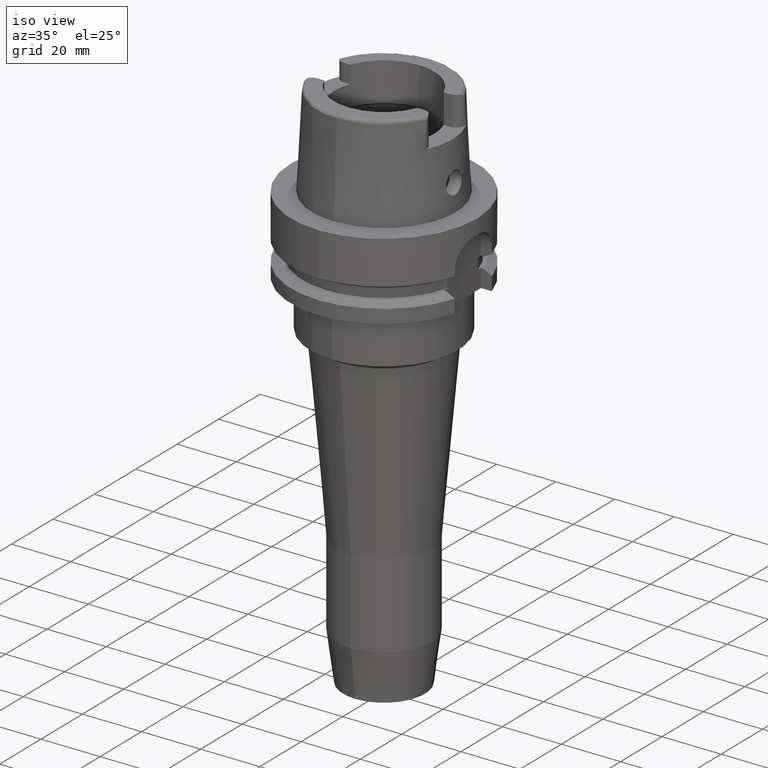
[diagram: clean part render]
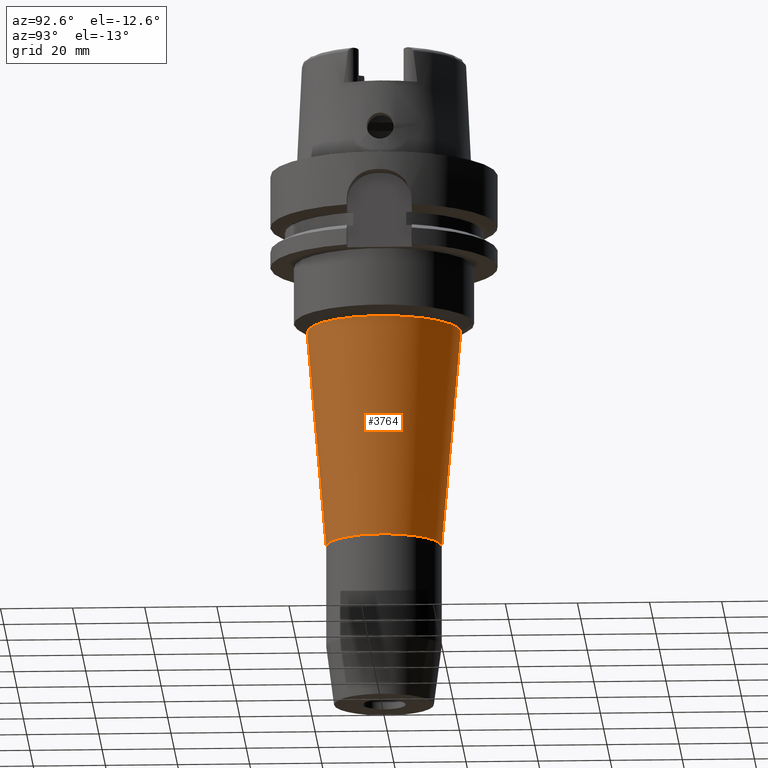
[diagram: tour spotlight — one face highlighted and labeled with its STEP entity id]
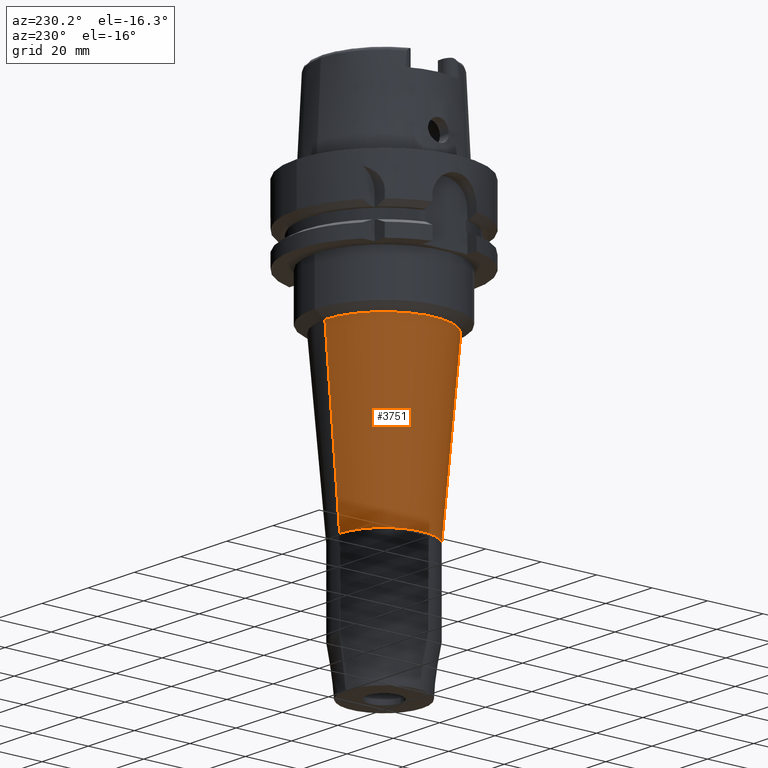
[diagram: tour spotlight — one face highlighted and labeled with its STEP entity id]
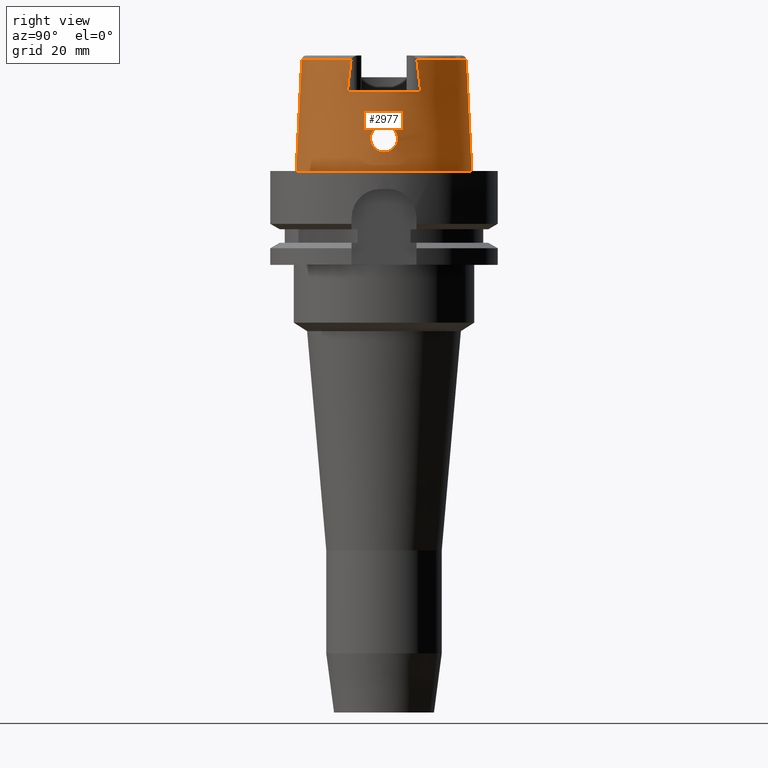
[diagram: tour spotlight — one face highlighted and labeled with its STEP entity id]
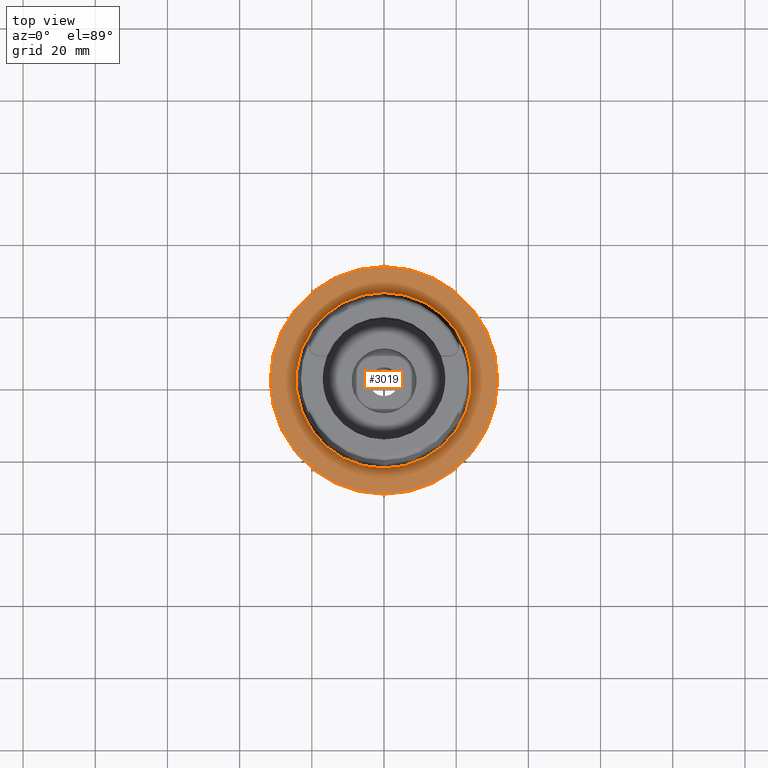
[diagram: tour spotlight — one face highlighted and labeled with its STEP entity id]
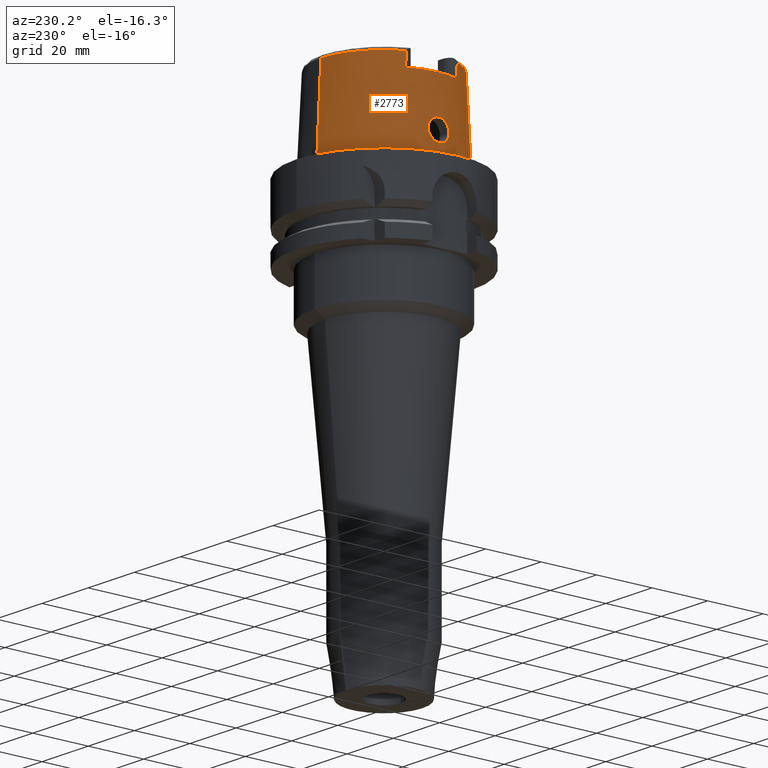
[diagram: tour spotlight — one face highlighted and labeled with its STEP entity id]
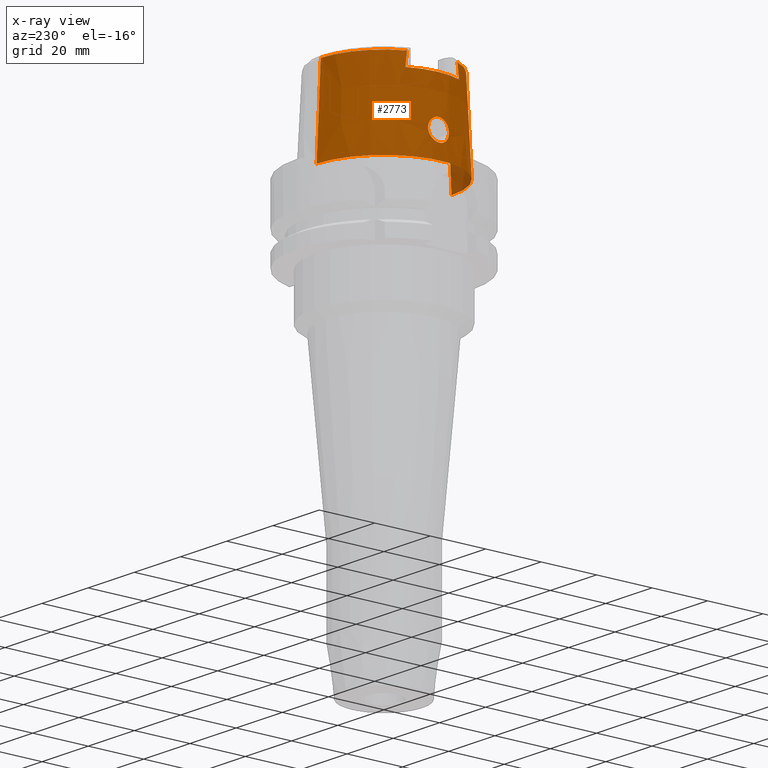
[diagram: x-ray of the same camera — body ghosted, this tour face saturated]
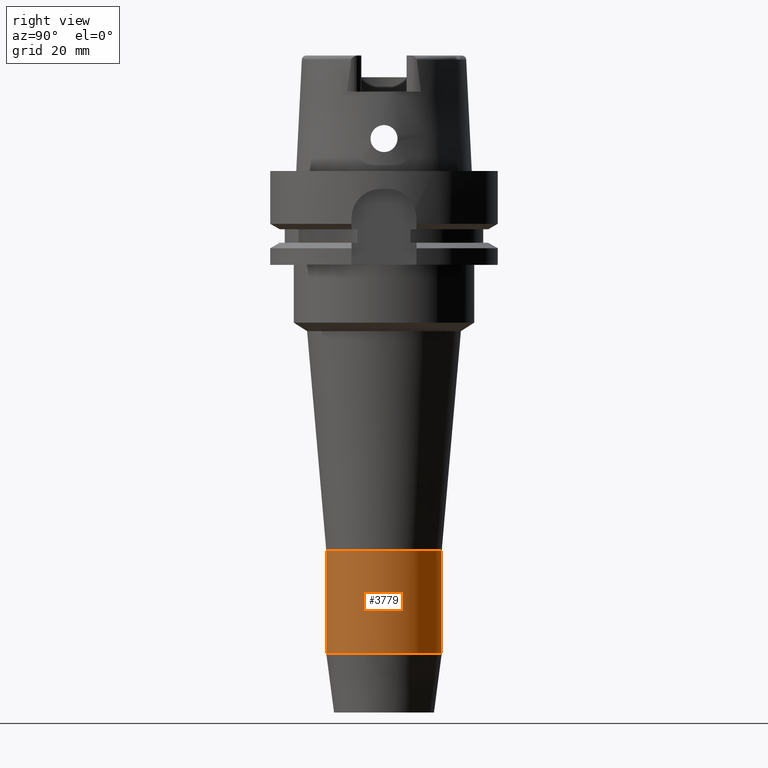
[diagram: tour spotlight — one face highlighted and labeled with its STEP entity id]
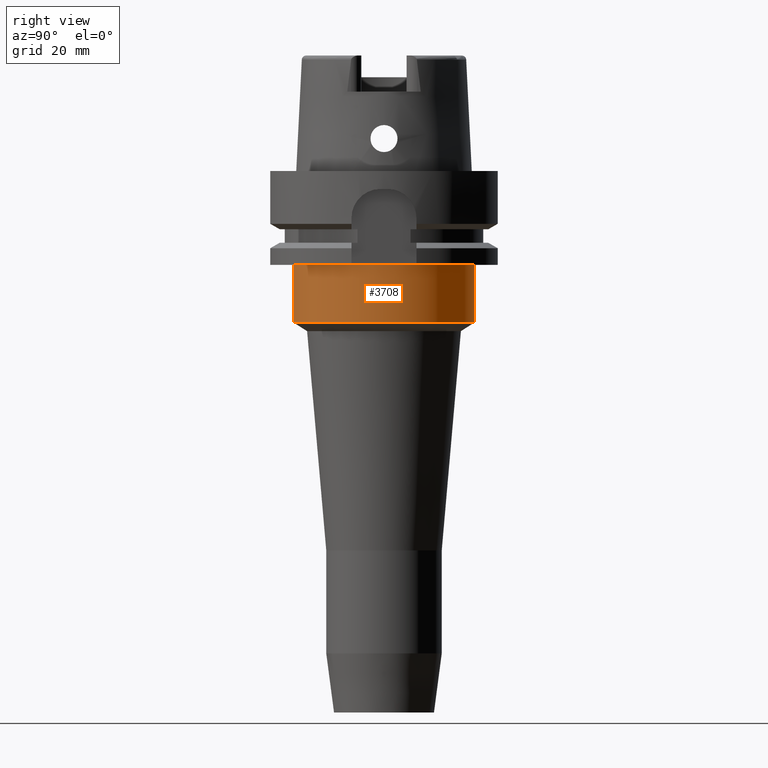
[diagram: tour spotlight — one face highlighted and labeled with its STEP entity id]
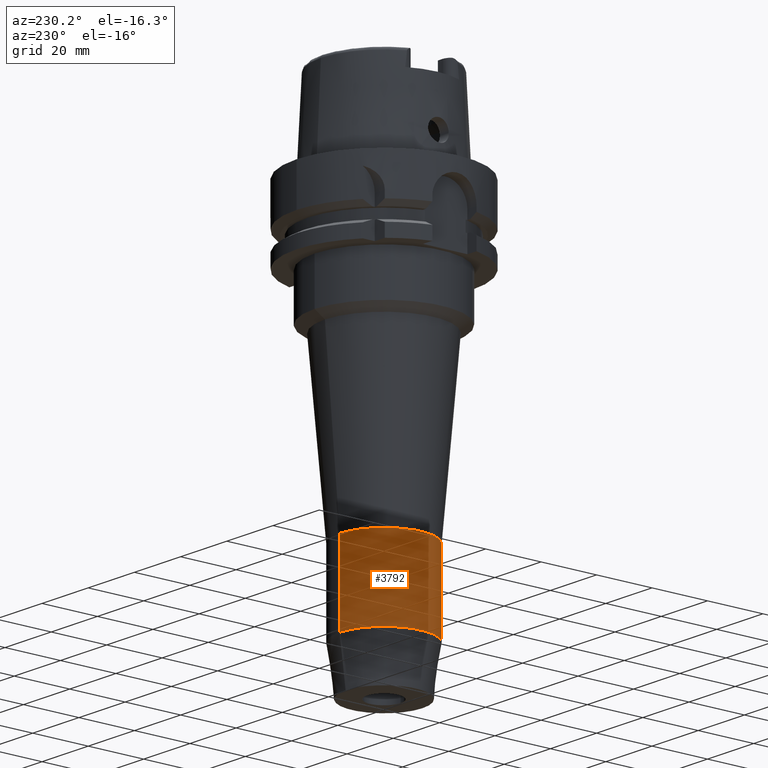
[diagram: tour spotlight — one face highlighted and labeled with its STEP entity id]
A machine part: a face-by-face anatomy tour. The part has 100 B-rep faces; the first image is the clean iso view, then the 8 largest visible faces are spotlighted one at a time (largest first), each with its STEP entity span.

Face 1 — auxiliary view, entity #3764. In plain terms, the highlighted conical surface has half-angle 4.993 deg.
Definition (entity closure, byte-faithful):
#1661=DIRECTION('',(0.E0,8.703403395518E-2,-9.962053387397E-1));
#1662=VECTOR('',#1661,6.096627674617E1);
#1663=CARTESIAN_POINT('',(0.E0,-2.130614100044E1,-4.435206962239E1));
#1664=LINE('',#1663,#1662);
#1676=DIRECTION('',(0.E0,-8.703403395518E-2,-9.962053387397E-1));
#1677=VECTOR('',#1676,6.096627674617E1);
#1678=CARTESIAN_POINT('',(0.E0,2.130614100044E1,-4.435206962239E1));
#1679=LINE('',#1678,#1677);
#1683=CARTESIAN_POINT('',(0.E0,0.E0,-1.05087E2));
#1684=DIRECTION('',(0.E0,0.E0,-1.E0));
#1685=DIRECTION('',(0.E0,1.E0,0.E0));
#1686=AXIS2_PLACEMENT_3D('',#1683,#1684,#1685);
#1691=CARTESIAN_POINT('',(0.E0,0.E0,-4.435206962239E1));
#1692=DIRECTION('',(0.E0,0.E0,1.E0));
#1693=DIRECTION('',(0.E0,-1.E0,0.E0));
#1694=AXIS2_PLACEMENT_3D('',#1691,#1692,#1693);
#2468=CARTESIAN_POINT('',(0.E0,1.6E1,-1.05087E2));
#2469=VERTEX_POINT('',#2468);
#2470=CARTESIAN_POINT('',(0.E0,-1.6E1,-1.05087E2));
#2471=VERTEX_POINT('',#2470);
#2472=CARTESIAN_POINT('',(0.E0,2.130614100044E1,-4.435206962239E1));
#2473=VERTEX_POINT('',#2472);
#2474=CARTESIAN_POINT('',(0.E0,-2.130614100044E1,-4.435206962239E1));
#2475=VERTEX_POINT('',#2474);
#3752=CARTESIAN_POINT('',(0.E0,0.E0,-7.471953481119E1));
#3753=DIRECTION('',(0.E0,0.E0,1.E0));
#3754=DIRECTION('',(0.E0,1.E0,0.E0));
#3755=AXIS2_PLACEMENT_3D('',#3752,#3753,#3754);
#3756=CONICAL_SURFACE('',#3755,1.865307050022E1,4.993E0);
#3757=ORIENTED_EDGE('',*,*,#3742,.T.);
#3759=ORIENTED_EDGE('',*,*,#3758,.T.);
#3760=ORIENTED_EDGE('',*,*,#3745,.F.);
#3761=ORIENTED_EDGE('',*,*,#3716,.T.);
#3762=EDGE_LOOP('',(#3757,#3759,#3760,#3761));
#3763=FACE_OUTER_BOUND('',#3762,.F.);
#1687=CIRCLE('',#1686,1.6E1);
#1695=CIRCLE('',#1694,2.130614100044E1);
#3716=EDGE_CURVE('',#2475,#2473,#1695,.T.);
#3742=EDGE_CURVE('',#2473,#2469,#1679,.T.);
#3745=EDGE_CURVE('',#2475,#2471,#1664,.T.);
#3758=EDGE_CURVE('',#2469,#2471,#1687,.T.);
#3764=ADVANCED_FACE('',(#3763),#3756,.T.);

Face 2 — auxiliary view, entity #3751. In plain terms, the highlighted conical surface has half-angle 4.993 deg.
Definition (entity closure, byte-faithful):
#1653=CARTESIAN_POINT('',(0.E0,0.E0,-4.435206962238E1));
#1654=DIRECTION('',(0.E0,0.E0,-1.E0));
#1655=DIRECTION('',(0.E0,-1.E0,0.E0));
#1656=AXIS2_PLACEMENT_3D('',#1653,#1654,#1655);
#1661=DIRECTION('',(0.E0,8.703403395518E-2,-9.962053387397E-1));
#1662=VECTOR('',#1661,6.096627674617E1);
#1663=CARTESIAN_POINT('',(0.E0,-2.130614100044E1,-4.435206962239E1));
#1664=LINE('',#1663,#1662);
#1668=CARTESIAN_POINT('',(0.E0,0.E0,-1.05087E2));
#1669=DIRECTION('',(0.E0,0.E0,-1.E0));
#1670=DIRECTION('',(0.E0,-1.E0,0.E0));
#1671=AXIS2_PLACEMENT_3D('',#1668,#1669,#1670);
#1676=DIRECTION('',(0.E0,-8.703403395518E-2,-9.962053387397E-1));
#1677=VECTOR('',#1676,6.096627674617E1);
#1678=CARTESIAN_POINT('',(0.E0,2.130614100044E1,-4.435206962239E1));
#1679=LINE('',#1678,#1677);
#2468=CARTESIAN_POINT('',(0.E0,1.6E1,-1.05087E2));
#2469=VERTEX_POINT('',#2468);
#2470=CARTESIAN_POINT('',(0.E0,-1.6E1,-1.05087E2));
#2471=VERTEX_POINT('',#2470);
#2472=CARTESIAN_POINT('',(0.E0,2.130614100044E1,-4.435206962239E1));
#2473=VERTEX_POINT('',#2472);
#2474=CARTESIAN_POINT('',(0.E0,-2.130614100044E1,-4.435206962239E1));
#2475=VERTEX_POINT('',#2474);
#3737=CARTESIAN_POINT('',(0.E0,0.E0,-7.471953481119E1));
#3738=DIRECTION('',(0.E0,0.E0,1.E0));
#3739=DIRECTION('',(0.E0,1.E0,0.E0));
#3740=AXIS2_PLACEMENT_3D('',#3737,#3738,#3739);
#3741=CONICAL_SURFACE('',#3740,1.865307050022E1,4.993E0);
#3743=ORIENTED_EDGE('',*,*,#3742,.F.);
#3744=ORIENTED_EDGE('',*,*,#3732,.F.);
#3746=ORIENTED_EDGE('',*,*,#3745,.T.);
#3748=ORIENTED_EDGE('',*,*,#3747,.T.);
#3749=EDGE_LOOP('',(#3743,#3744,#3746,#3748));
#3750=FACE_OUTER_BOUND('',#3749,.F.);
#1657=CIRCLE('',#1656,2.130614100045E1);
#1672=CIRCLE('',#1671,1.6E1);
#3732=EDGE_CURVE('',#2475,#2473,#1657,.T.);
#3742=EDGE_CURVE('',#2473,#2469,#1679,.T.);
#3745=EDGE_CURVE('',#2475,#2471,#1664,.T.);
#3747=EDGE_CURVE('',#2471,#2469,#1672,.T.);
#3751=ADVANCED_FACE('',(#3750),#3741,.T.);

Face 3 — right view, entity #2977. In plain terms, the highlighted conical surface has half-angle 2.862 deg.
Definition (entity closure, byte-faithful):
#180=DIRECTION('',(8.032179027582E-5,-4.993928193351E-2,-9.987522523971E-1));
#181=VECTOR('',#180,3.089848062794E1);
#182=CARTESIAN_POINT('',(-2.481821280836E-3,-2.277198688789E1,
3.085992712280E1));
#183=LINE('',#182,#181);
#274=CARTESIAN_POINT('',(2.086974110890E1,-9.111383545307E0,3.085992739891E1));
#279=CARTESIAN_POINT('',(0.E0,0.E0,3.085992712280E1));
#280=DIRECTION('',(0.E0,0.E0,-1.E0));
#281=DIRECTION('',(9.164655183266E-1,-4.001136759952E-1,0.E0));
#282=AXIS2_PLACEMENT_3D('',#279,#280,#281);
#367=CARTESIAN_POINT('',(0.E0,0.E0,2.2E1));
#368=DIRECTION('',(0.E0,0.E0,-1.E0));
#369=DIRECTION('',(8.989877876695E-1,4.379736951247E-1,0.E0));
#370=AXIS2_PLACEMENT_3D('',#367,#368,#369);
#491=CARTESIAN_POINT('',(0.E0,0.E0,3.085992712280E1));
#492=DIRECTION('',(0.E0,0.E0,-1.E0));
#493=DIRECTION('',(0.E0,1.E0,0.E0));
#494=AXIS2_PLACEMENT_3D('',#491,#492,#493);
#517=CARTESIAN_POINT('',(2.086999606046E1,1.016757672266E1,2.2E1));
#518=CARTESIAN_POINT('',(2.086999606046E1,1.005830459063E1,2.295713692901E1));
#519=CARTESIAN_POINT('',(2.087000073896E1,9.837693730875E0,2.486635586685E1));
#520=CARTESIAN_POINT('',(2.087000332293E1,9.498302441153E0,2.771500404677E1));
#521=CARTESIAN_POINT('',(2.086999175384E1,9.267368850587E0,2.960362234706E1));
#522=CARTESIAN_POINT('',(2.086999175384E1,9.150018522195E0,3.054599590696E1));
#527=CARTESIAN_POINT('',(2.086999175384E1,9.150018522195E0,3.054599590696E1));
#528=CARTESIAN_POINT('',(2.086999175384E1,9.145671884266E0,3.058090127719E1));
#529=CARTESIAN_POINT('',(2.086998416655E1,9.136990373425E0,3.065018241705E1));
#530=CARTESIAN_POINT('',(2.086989220690E1,9.124128538912E0,3.075517018278E1));
#531=CARTESIAN_POINT('',(2.086979784207E1,9.115619992634E0,3.082498881153E1));
#532=CARTESIAN_POINT('',(2.086974104059E1,9.111384043401E0,3.085992601097E1));
#537=DIRECTION('',(-8.032179027593E-5,4.993928193351E-2,-9.987522523971E-1));
#538=VECTOR('',#537,3.089848062794E1);
#539=CARTESIAN_POINT('',(2.481821280840E-3,2.277198688789E1,3.085992712280E1));
#540=LINE('',#539,#538);
#544=CARTESIAN_POINT('',(2.086974110890E1,-9.111383545307E0,3.085992739891E1));
#545=CARTESIAN_POINT('',(2.086979791523E1,-9.115619747534E0,3.082498808786E1));
#546=CARTESIAN_POINT('',(2.086989359503E1,-9.124126100557E0,3.075510751685E1));
#547=CARTESIAN_POINT('',(2.086997922485E1,-9.137002228651E0,3.065040319054E1));
#548=CARTESIAN_POINT('',(2.087000236792E1,-9.145647815676E0,3.058042815478E1));
#549=CARTESIAN_POINT('',(2.087000236792E1,-9.149994681381E0,3.054552122895E1));
#554=CARTESIAN_POINT('',(2.087000236792E1,-9.149994681381E0,3.054552122895E1));
#555=CARTESIAN_POINT('',(2.087000236792E1,-9.267237586258E0,2.960401770380E1));
#556=CARTESIAN_POINT('',(2.087000130158E1,-9.498473773453E0,2.771533041693E1));
#557=CARTESIAN_POINT('',(2.086999189259E1,-9.837864426117E0,2.486682029449E1));
#558=CARTESIAN_POINT('',(2.087001804958E1,-1.005818307170E1,2.295730285027E1));
#559=CARTESIAN_POINT('',(2.087001804958E1,-1.016747560172E1,2.2E1));
#564=CARTESIAN_POINT('',(2.367751368058E1,0.E0,1.275E1));
#565=CARTESIAN_POINT('',(2.367751368058E1,-3.573750892276E-1,1.275E1));
#566=CARTESIAN_POINT('',(2.366602661328E1,-1.072480470838E0,1.264701812658E1));
#567=CARTESIAN_POINT('',(2.362156617659E1,-2.058400404760E0,1.219633609900E1));
#568=CARTESIAN_POINT('',(2.356917741263E1,-2.879133370746E0,1.148246034677E1));
#569=CARTESIAN_POINT('',(2.353465313627E1,-3.460299468910E0,1.057248995301E1));
#570=CARTESIAN_POINT('',(2.353933107364E1,-3.762049578497E0,9.540048673058E0));
#571=CARTESIAN_POINT('',(2.359357380852E1,-3.762854586792E0,8.466825258654E0));
#572=CARTESIAN_POINT('',(2.369280279451E1,-3.463794247878E0,7.434551172416E0));
#573=CARTESIAN_POINT('',(2.381915270499E1,-2.880545210358E0,6.518206087924E0));
#574=CARTESIAN_POINT('',(2.394281602525E1,-2.055622413007E0,5.801336085520E0));
#575=CARTESIAN_POINT('',(2.403140486443E1,-1.065773042871E0,5.351066768983E0));
#576=CARTESIAN_POINT('',(2.405252611747E1,-3.543520545894E-1,5.25E0));
#577=CARTESIAN_POINT('',(2.405252611747E1,0.E0,5.25E0));
#582=CARTESIAN_POINT('',(2.405252611747E1,0.E0,5.25E0));
#583=CARTESIAN_POINT('',(2.405252611747E1,3.539388083922E-1,5.25E0));
#584=CARTESIAN_POINT('',(2.403138314055E1,1.062742172268E0,5.351240040662E0));
#585=CARTESIAN_POINT('',(2.394445349424E1,2.040088640092E0,5.792918795612E0));
#586=CARTESIAN_POINT('',(2.382211050449E1,2.864325034476E0,6.499618269899E0));
#587=CARTESIAN_POINT('',(2.369483932988E1,3.456604325712E0,7.416308849852E0));
#588=CARTESIAN_POINT('',(2.359383882169E1,3.763238276441E0,8.460463559970E0));
#589=CARTESIAN_POINT('',(2.353912852789E1,3.762052968905E0,9.544123637686E0));
#590=CARTESIAN_POINT('',(2.353478993067E1,3.457796473264E0,1.057717548023E1));
#591=CARTESIAN_POINT('',(2.356916741657E1,2.879303421212E0,1.148125246033E1));
#592=CARTESIAN_POINT('',(2.362130496122E1,2.062872337162E0,1.219341130049E1));
#593=CARTESIAN_POINT('',(2.366596789500E1,1.075165795176E0,1.264654607911E1));
#594=CARTESIAN_POINT('',(2.367751368058E1,3.584897738616E-1,1.275E1));
#595=CARTESIAN_POINT('',(2.367751368058E1,0.E0,1.275E1));
#630=CARTESIAN_POINT('',(0.E0,0.E0,-7.389644451905E-13));
#631=DIRECTION('',(0.E0,0.E0,1.E0));
#632=DIRECTION('',(0.E0,-1.E0,0.E0));
#633=AXIS2_PLACEMENT_3D('',#630,#631,#632);
#2357=CARTESIAN_POINT('',(0.E0,-2.277198729362E1,3.085992712280E1));
#2358=VERTEX_POINT('',#2357);
#2359=CARTESIAN_POINT('',(0.E0,-2.431503482329E1,-3.410605131648E-13));
#2360=VERTEX_POINT('',#2359);
#2361=CARTESIAN_POINT('',(0.E0,2.431503482329E1,-7.389644451905E-13));
#2362=VERTEX_POINT('',#2361);
#2363=CARTESIAN_POINT('',(2.481821280840E-3,2.277198688789E1,3.085992712280E1));
#2364=VERTEX_POINT('',#2363);
#2367=CARTESIAN_POINT('',(2.086974092012E1,9.111384045666E0,3.085992712280E1));
#2368=VERTEX_POINT('',#2367);
#2369=VERTEX_POINT('',#274);
#2370=CARTESIAN_POINT('',(2.087E1,1.016755860605E1,2.2E1));
#2371=CARTESIAN_POINT('',(2.087E1,-1.016755860605E1,2.2E1));
#2372=VERTEX_POINT('',#2370);
#2373=VERTEX_POINT('',#2371);
#2374=VERTEX_POINT('',#522);
#2375=VERTEX_POINT('',#549);
#2376=VERTEX_POINT('',#564);
#2377=VERTEX_POINT('',#577);
#2950=CARTESIAN_POINT('',(0.E0,0.E0,1.542996356140E1));
#2951=DIRECTION('',(0.E0,0.E0,-1.E0));
#2952=DIRECTION('',(0.E0,-1.E0,0.E0));
#2953=AXIS2_PLACEMENT_3D('',#2950,#2951,#2952);
#2954=CONICAL_SURFACE('',#2953,2.354351105845E1,2.8625E0);
#2955=ORIENTED_EDGE('',*,*,#2864,.F.);
#2957=ORIENTED_EDGE('',*,*,#2956,.T.);
#2959=ORIENTED_EDGE('',*,*,#2958,.T.);
#2960=ORIENTED_EDGE('',*,*,#2942,.F.);
#2961=ORIENTED_EDGE('',*,*,#2757,.T.);
#2963=ORIENTED_EDGE('',*,*,#2962,.F.);
#2964=ORIENTED_EDGE('',*,*,#2753,.F.);
#2965=ORIENTED_EDGE('',*,*,#2794,.F.);
#2966=ORIENTED_EDGE('',*,*,#2812,.T.);
#2968=ORIENTED_EDGE('',*,*,#2967,.T.);
#2969=EDGE_LOOP('',(#2955,#2957,#2959,#2960,#2961,#2963,#2964,#2965,#2966,
#2968));
#2970=FACE_OUTER_BOUND('',#2969,.F.);
#2972=ORIENTED_EDGE('',*,*,#2971,.T.);
#2974=ORIENTED_EDGE('',*,*,#2973,.T.);
#2975=EDGE_LOOP('',(#2972,#2974));
#2976=FACE_BOUND('',#2975,.F.);
#283=CIRCLE('',#282,2.277198729362E1);
#371=CIRCLE('',#370,2.321499834175E1);
#495=CIRCLE('',#494,2.277198729362E1);
#523=B_SPLINE_CURVE_WITH_KNOTS('',3,(#517,#518,#519,#520,#521,#522),
.UNSPECIFIED.,.F.,.F.,(4,1,1,4),(0.E0,3.333333333333E-1,6.666666666667E-1,1.E0),
.UNSPECIFIED.);
#533=B_SPLINE_CURVE_WITH_KNOTS('',3,(#527,#528,#529,#530,#531,#532),
.UNSPECIFIED.,.F.,.F.,(4,1,1,4),(0.E0,3.333333333333E-1,6.666666666667E-1,1.E0),
.UNSPECIFIED.);
#550=B_SPLINE_CURVE_WITH_KNOTS('',3,(#544,#545,#546,#547,#548,#549),
.UNSPECIFIED.,.F.,.F.,(4,1,1,4),(0.E0,3.333333333333E-1,6.666666666667E-1,1.E0),
.UNSPECIFIED.);
#560=B_SPLINE_CURVE_WITH_KNOTS('',3,(#554,#555,#556,#557,#558,#559),
.UNSPECIFIED.,.F.,.F.,(4,1,1,4),(0.E0,3.333333333333E-1,6.666666666667E-1,1.E0),
.UNSPECIFIED.);
#578=B_SPLINE_CURVE_WITH_KNOTS('',3,(#564,#565,#566,#567,#568,#569,#570,#571,
#572,#573,#574,#575,#576,#577),.UNSPECIFIED.,.F.,.F.,(4,1,1,1,1,1,1,1,1,1,1,4),(
0.E0,9.090909090909E-2,1.818181818182E-1,2.727272727273E-1,3.636363636364E-1,
4.545454545455E-1,5.454545454545E-1,6.363636363636E-1,7.272727272727E-1,
8.181818181818E-1,9.090909090909E-1,1.E0),.UNSPECIFIED.);
#596=B_SPLINE_CURVE_WITH_KNOTS('',3,(#582,#583,#584,#585,#586,#587,#588,#589,
#590,#591,#592,#593,#594,#595),.UNSPECIFIED.,.F.,.F.,(4,1,1,1,1,1,1,1,1,1,1,4),(
0.E0,9.090909090909E-2,1.818181818182E-1,2.727272727273E-1,3.636363636364E-1,
4.545454545455E-1,5.454545454545E-1,6.363636363636E-1,7.272727272727E-1,
8.181818181818E-1,9.090909090909E-1,1.E0),.UNSPECIFIED.);
#634=CIRCLE('',#633,2.431503482329E1);
#2753=EDGE_CURVE('',#2358,#2360,#183,.T.);
#2757=EDGE_CURVE('',#2364,#2362,#540,.T.);
#2794=EDGE_CURVE('',#2369,#2358,#283,.T.);
#2812=EDGE_CURVE('',#2369,#2375,#550,.T.);
#2864=EDGE_CURVE('',#2372,#2373,#371,.T.);
#2942=EDGE_CURVE('',#2364,#2368,#495,.T.);
#2956=EDGE_CURVE('',#2372,#2374,#523,.T.);
#2958=EDGE_CURVE('',#2374,#2368,#533,.T.);
#2962=EDGE_CURVE('',#2360,#2362,#634,.T.);
#2967=EDGE_CURVE('',#2375,#2373,#560,.T.);
#2971=EDGE_CURVE('',#2376,#2377,#578,.T.);
#2973=EDGE_CURVE('',#2377,#2376,#596,.T.);
#2977=ADVANCED_FACE('',(#2970,#2976),#2954,.T.);

Face 4 — top view, entity #3019. In plain terms, the highlighted planar face has unit normal (0, 0, 1).
Definition (entity closure, byte-faithful):
#614=CARTESIAN_POINT('',(0.E0,0.E0,3.410605131648E-13));
#615=DIRECTION('',(0.E0,0.E0,-1.E0));
#616=DIRECTION('',(0.E0,-1.E0,0.E0));
#617=AXIS2_PLACEMENT_3D('',#614,#615,#616);
#622=CARTESIAN_POINT('',(0.E0,0.E0,3.410605131648E-13));
#623=DIRECTION('',(0.E0,0.E0,-1.E0));
#624=DIRECTION('',(0.E0,1.E0,0.E0));
#625=AXIS2_PLACEMENT_3D('',#622,#623,#624);
#630=CARTESIAN_POINT('',(0.E0,0.E0,-7.389644451905E-13));
#631=DIRECTION('',(0.E0,0.E0,1.E0));
#632=DIRECTION('',(0.E0,-1.E0,0.E0));
#633=AXIS2_PLACEMENT_3D('',#630,#631,#632);
#638=CARTESIAN_POINT('',(0.E0,0.E0,-7.389644451905E-13));
#639=DIRECTION('',(0.E0,0.E0,1.E0));
#640=DIRECTION('',(0.E0,1.E0,0.E0));
#641=AXIS2_PLACEMENT_3D('',#638,#639,#640);
#2359=CARTESIAN_POINT('',(0.E0,-2.431503482329E1,-3.410605131648E-13));
#2360=VERTEX_POINT('',#2359);
#2361=CARTESIAN_POINT('',(0.E0,2.431503482329E1,-7.389644451905E-13));
#2362=VERTEX_POINT('',#2361);
#2633=CARTESIAN_POINT('',(0.E0,3.15E1,1.894780628694E-13));
#2634=VERTEX_POINT('',#2633);
#2635=CARTESIAN_POINT('',(0.E0,-3.15E1,3.410605131648E-13));
#2636=VERTEX_POINT('',#2635);
#3004=CARTESIAN_POINT('',(0.E0,0.E0,0.E0));
#3005=DIRECTION('',(0.E0,0.E0,1.E0));
#3006=DIRECTION('',(0.E0,1.E0,0.E0));
#3007=AXIS2_PLACEMENT_3D('',#3004,#3005,#3006);
#3008=PLANE('',#3007);
#3010=ORIENTED_EDGE('',*,*,#3009,.T.);
#3012=ORIENTED_EDGE('',*,*,#3011,.T.);
#3013=EDGE_LOOP('',(#3010,#3012));
#3014=FACE_OUTER_BOUND('',#3013,.F.);
#3015=ORIENTED_EDGE('',*,*,#2962,.T.);
#3016=ORIENTED_EDGE('',*,*,#2755,.T.);
#3017=EDGE_LOOP('',(#3015,#3016));
#3018=FACE_BOUND('',#3017,.F.);
#618=CIRCLE('',#617,3.15E1);
#626=CIRCLE('',#625,3.15E1);
#634=CIRCLE('',#633,2.431503482329E1);
#642=CIRCLE('',#641,2.431503482329E1);
#2755=EDGE_CURVE('',#2362,#2360,#642,.T.);
#2962=EDGE_CURVE('',#2360,#2362,#634,.T.);
#3009=EDGE_CURVE('',#2636,#2634,#618,.T.);
#3011=EDGE_CURVE('',#2634,#2636,#626,.T.);
#3019=ADVANCED_FACE('',(#3014,#3018),#3008,.T.);

Face 5 — auxiliary view, entity #2773. An x-ray twin of the same camera follows (body ghosted, this face saturated) — the face is partly hidden behind the body. In plain terms, the highlighted conical surface has half-angle 2.862 deg.
Definition (entity closure, byte-faithful):
#69=CARTESIAN_POINT('',(0.E0,0.E0,2.6E1));
#70=DIRECTION('',(0.E0,0.E0,-1.E0));
#71=DIRECTION('',(-9.068002397791E-1,-4.215605829967E-1,0.E0));
#72=AXIS2_PLACEMENT_3D('',#69,#70,#71);
#160=CARTESIAN_POINT('',(-2.086999931535E1,-9.702216590561E0,2.6E1));
#161=CARTESIAN_POINT('',(-2.086999931535E1,-9.642048820361E0,2.650727061302E1));
#162=CARTESIAN_POINT('',(-2.087000013188E1,-9.520999784311E0,2.752034962291E1));
#163=CARTESIAN_POINT('',(-2.087000056538E1,-9.336893546791E0,2.903557629453E1));
#164=CARTESIAN_POINT('',(-2.086999859286E1,-9.212633972085E0,3.004273962856E1));
#165=CARTESIAN_POINT('',(-2.086999859286E1,-9.150003160547E0,3.054568941686E1));
#170=CARTESIAN_POINT('',(-2.086999859286E1,-9.150003160547E0,3.054568941686E1));
#171=CARTESIAN_POINT('',(-2.086999859286E1,-9.145656550786E0,3.058059438465E1));
#172=CARTESIAN_POINT('',(-2.086998097501E1,-9.136997529037E0,3.065032563367E1));
#173=CARTESIAN_POINT('',(-2.086989311877E1,-9.124126494439E0,3.075512926385E1));
#174=CARTESIAN_POINT('',(-2.086979784207E1,-9.115619992630E0,3.082498881156E1));
#175=CARTESIAN_POINT('',(-2.086974104059E1,-9.111384043401E0,3.085992601097E1));
#180=DIRECTION('',(8.032179027582E-5,-4.993928193351E-2,-9.987522523971E-1));
#181=VECTOR('',#180,3.089848062794E1);
#182=CARTESIAN_POINT('',(-2.481821280836E-3,-2.277198688789E1,
3.085992712280E1));
#183=LINE('',#182,#181);
#187=CARTESIAN_POINT('',(-2.086974110890E1,9.111383545308E0,3.085992739891E1));
#188=CARTESIAN_POINT('',(-2.086979791523E1,9.115619747532E0,3.082498808788E1));
#189=CARTESIAN_POINT('',(-2.086989333338E1,9.124126689090E0,3.075511924067E1));
#190=CARTESIAN_POINT('',(-2.086998014064E1,9.137000168771E0,3.065036215730E1));
#191=CARTESIAN_POINT('',(-2.087000040551E1,9.145652229696E0,3.058051608324E1));
#192=CARTESIAN_POINT('',(-2.087000040551E1,9.149999089201E0,3.054560915662E1));
#197=CARTESIAN_POINT('',(-2.087000040551E1,9.149999089201E0,3.054560915662E1));
#198=CARTESIAN_POINT('',(-2.087000040551E1,9.212612082841E0,3.004280312583E1));
#199=CARTESIAN_POINT('',(-2.087000020370E1,9.336923098267E0,2.903562847786E1));
#200=CARTESIAN_POINT('',(-2.086999867880E1,9.521029051521E0,2.752042416367E1));
#201=CARTESIAN_POINT('',(-2.087000294700E1,9.642028220320E0,2.650729690943E1));
#202=CARTESIAN_POINT('',(-2.087000294700E1,9.702199254900E0,2.6E1));
#207=CARTESIAN_POINT('',(-2.405252611747E1,6.507195594501E-14,5.25E0));
#208=CARTESIAN_POINT('',(-2.405252611747E1,-3.539371138725E-1,5.25E0));
#209=CARTESIAN_POINT('',(-2.403138355696E1,-1.062739339113E0,5.351237667572E0));
#210=CARTESIAN_POINT('',(-2.394445199445E1,-2.040101645239E0,5.792927260805E0));
#211=CARTESIAN_POINT('',(-2.382210989187E1,-2.864329205136E0,6.499620767989E0));
#212=CARTESIAN_POINT('',(-2.369483467558E1,-3.456623539294E0,7.416346440128E0));
#213=CARTESIAN_POINT('',(-2.359383677536E1,-3.763241030920E0,8.460493495634E0));
#214=CARTESIAN_POINT('',(-2.353912722835E1,-3.762050460600E0,9.544159398722E0));
#215=CARTESIAN_POINT('',(-2.353479111729E1,-3.457772329575E0,1.057722020441E1));
#216=CARTESIAN_POINT('',(-2.356916712298E1,-2.879309625069E0,1.148124151293E1));
#217=CARTESIAN_POINT('',(-2.362130524511E1,-2.062866255238E0,1.219341663838E1));
#218=CARTESIAN_POINT('',(-2.366596758220E1,-1.075173607198E0,1.264654233397E1));
#219=CARTESIAN_POINT('',(-2.367751368058E1,-3.584931676637E-1,1.275E1));
#220=CARTESIAN_POINT('',(-2.367751368058E1,0.E0,1.275E1));
#225=CARTESIAN_POINT('',(-2.367751368058E1,0.E0,1.275E1));
#226=CARTESIAN_POINT('',(-2.367751368058E1,3.573698471562E-1,1.275E1));
#227=CARTESIAN_POINT('',(-2.366602710060E1,1.072470232321E0,1.264702361282E1));
#228=CARTESIAN_POINT('',(-2.362156522329E1,2.058419648222E0,1.219632408891E1));
#229=CARTESIAN_POINT('',(-2.356917684752E1,2.879139548555E0,1.148245592891E1));
#230=CARTESIAN_POINT('',(-2.353465226491E1,3.460321969280E0,1.057244261510E1));
#231=CARTESIAN_POINT('',(-2.353933189422E1,3.762049253971E0,9.540031611172E0));
#232=CARTESIAN_POINT('',(-2.359357530962E1,3.762853521961E0,8.466800667022E0));
#233=CARTESIAN_POINT('',(-2.369280644531E1,3.463778475162E0,7.434523008741E0));
#234=CARTESIAN_POINT('',(-2.381915118120E1,2.880552311287E0,6.518217263145E0));
#235=CARTESIAN_POINT('',(-2.394281608994E1,2.055623099746E0,5.801334996630E0));
#236=CARTESIAN_POINT('',(-2.403140465058E1,1.065775828138E0,5.351068072298E0));
#237=CARTESIAN_POINT('',(-2.405252611747E1,3.543530117688E-1,5.25E0));
#238=CARTESIAN_POINT('',(-2.405252611747E1,6.507195594501E-14,5.25E0));
#287=CARTESIAN_POINT('',(0.E0,0.E0,3.085992712280E1));
#288=DIRECTION('',(0.E0,0.E0,-1.E0));
#289=DIRECTION('',(0.E0,-1.E0,0.E0));
#290=AXIS2_PLACEMENT_3D('',#287,#288,#289);
#483=CARTESIAN_POINT('',(0.E0,0.E0,3.085992712280E1));
#484=DIRECTION('',(0.E0,0.E0,-1.E0));
#485=DIRECTION('',(-9.164655183266E-1,4.001136759952E-1,0.E0));
#486=AXIS2_PLACEMENT_3D('',#483,#484,#485);
#537=DIRECTION('',(-8.032179027593E-5,4.993928193351E-2,-9.987522523971E-1));
#538=VECTOR('',#537,3.089848062794E1);
#539=CARTESIAN_POINT('',(2.481821280840E-3,2.277198688789E1,3.085992712280E1));
#540=LINE('',#539,#538);
#638=CARTESIAN_POINT('',(0.E0,0.E0,-7.389644451905E-13));
#639=DIRECTION('',(0.E0,0.E0,1.E0));
#640=DIRECTION('',(0.E0,1.E0,0.E0));
#641=AXIS2_PLACEMENT_3D('',#638,#639,#640);
#2325=CARTESIAN_POINT('',(-2.086999931535E1,-9.702216590561E0,2.6E1));
#2326=VERTEX_POINT('',#2325);
#2327=CARTESIAN_POINT('',(-2.087E1,9.702213322399E0,2.6E1));
#2328=VERTEX_POINT('',#2327);
#2353=VERTEX_POINT('',#187);
#2354=VERTEX_POINT('',#192);
#2355=VERTEX_POINT('',#165);
#2356=VERTEX_POINT('',#175);
#2357=CARTESIAN_POINT('',(0.E0,-2.277198729362E1,3.085992712280E1));
#2358=VERTEX_POINT('',#2357);
#2359=CARTESIAN_POINT('',(0.E0,-2.431503482329E1,-3.410605131648E-13));
#2360=VERTEX_POINT('',#2359);
#2361=CARTESIAN_POINT('',(0.E0,2.431503482329E1,-7.389644451905E-13));
#2362=VERTEX_POINT('',#2361);
#2363=CARTESIAN_POINT('',(2.481821280840E-3,2.277198688789E1,3.085992712280E1));
#2364=VERTEX_POINT('',#2363);
#2365=VERTEX_POINT('',#207);
#2366=VERTEX_POINT('',#220);
#2742=CARTESIAN_POINT('',(0.E0,0.E0,1.542996356140E1));
#2743=DIRECTION('',(0.E0,0.E0,-1.E0));
#2744=DIRECTION('',(0.E0,-1.E0,0.E0));
#2745=AXIS2_PLACEMENT_3D('',#2742,#2743,#2744);
#2746=CONICAL_SURFACE('',#2745,2.354351105845E1,2.8625E0);
#2747=ORIENTED_EDGE('',*,*,#2680,.F.);
#2749=ORIENTED_EDGE('',*,*,#2748,.T.);
#2750=ORIENTED_EDGE('',*,*,#2730,.T.);
#2752=ORIENTED_EDGE('',*,*,#2751,.F.);
#2754=ORIENTED_EDGE('',*,*,#2753,.T.);
#2756=ORIENTED_EDGE('',*,*,#2755,.F.);
#2758=ORIENTED_EDGE('',*,*,#2757,.F.);
#2760=ORIENTED_EDGE('',*,*,#2759,.F.);
#2762=ORIENTED_EDGE('',*,*,#2761,.T.);
#2764=ORIENTED_EDGE('',*,*,#2763,.T.);
#2765=EDGE_LOOP('',(#2747,#2749,#2750,#2752,#2754,#2756,#2758,#2760,#2762,
#2764));
#2766=FACE_OUTER_BOUND('',#2765,.F.);
#2768=ORIENTED_EDGE('',*,*,#2767,.T.);
#2770=ORIENTED_EDGE('',*,*,#2769,.T.);
#2771=EDGE_LOOP('',(#2768,#2770));
#2772=FACE_BOUND('',#2771,.F.);
#73=CIRCLE('',#72,2.301499170874E1);
#166=B_SPLINE_CURVE_WITH_KNOTS('',3,(#160,#161,#162,#163,#164,#165),
.UNSPECIFIED.,.F.,.F.,(4,1,1,4),(0.E0,3.333333333333E-1,6.666666666667E-1,1.E0),
.UNSPECIFIED.);
#176=B_SPLINE_CURVE_WITH_KNOTS('',3,(#170,#171,#172,#173,#174,#175),
.UNSPECIFIED.,.F.,.F.,(4,1,1,4),(0.E0,3.333333333333E-1,6.666666666667E-1,1.E0),
.UNSPECIFIED.);
#193=B_SPLINE_CURVE_WITH_KNOTS('',3,(#187,#188,#189,#190,#191,#192),
.UNSPECIFIED.,.F.,.F.,(4,1,1,4),(0.E0,3.333333333333E-1,6.666666666667E-1,1.E0),
.UNSPECIFIED.);
#203=B_SPLINE_CURVE_WITH_KNOTS('',3,(#197,#198,#199,#200,#201,#202),
.UNSPECIFIED.,.F.,.F.,(4,1,1,4),(0.E0,3.333333333333E-1,6.666666666667E-1,1.E0),
.UNSPECIFIED.);
#221=B_SPLINE_CURVE_WITH_KNOTS('',3,(#207,#208,#209,#210,#211,#212,#213,#214,
#215,#216,#217,#218,#219,#220),.UNSPECIFIED.,.F.,.F.,(4,1,1,1,1,1,1,1,1,1,1,4),(
0.E0,9.090909090909E-2,1.818181818182E-1,2.727272727273E-1,3.636363636364E-1,
4.545454545455E-1,5.454545454545E-1,6.363636363636E-1,7.272727272727E-1,
8.181818181818E-1,9.090909090909E-1,1.E0),.UNSPECIFIED.);
#239=B_SPLINE_CURVE_WITH_KNOTS('',3,(#225,#226,#227,#228,#229,#230,#231,#232,
#233,#234,#235,#236,#237,#238),.UNSPECIFIED.,.F.,.F.,(4,1,1,1,1,1,1,1,1,1,1,4),(
0.E0,9.090909090909E-2,1.818181818182E-1,2.727272727273E-1,3.636363636364E-1,
4.545454545455E-1,5.454545454545E-1,6.363636363636E-1,7.272727272727E-1,
8.181818181818E-1,9.090909090909E-1,1.E0),.UNSPECIFIED.);
#291=CIRCLE('',#290,2.277198729362E1);
#487=CIRCLE('',#486,2.277198729362E1);
#642=CIRCLE('',#641,2.431503482329E1);
#2680=EDGE_CURVE('',#2326,#2328,#73,.T.);
#2730=EDGE_CURVE('',#2355,#2356,#176,.T.);
#2748=EDGE_CURVE('',#2326,#2355,#166,.T.);
#2751=EDGE_CURVE('',#2358,#2356,#291,.T.);
#2753=EDGE_CURVE('',#2358,#2360,#183,.T.);
#2755=EDGE_CURVE('',#2362,#2360,#642,.T.);
#2757=EDGE_CURVE('',#2364,#2362,#540,.T.);
#2759=EDGE_CURVE('',#2353,#2364,#487,.T.);
#2761=EDGE_CURVE('',#2353,#2354,#193,.T.);
#2763=EDGE_CURVE('',#2354,#2328,#203,.T.);
#2767=EDGE_CURVE('',#2365,#2366,#221,.T.);
#2769=EDGE_CURVE('',#2366,#2365,#239,.T.);
#2773=ADVANCED_FACE('',(#2766,#2772),#2746,.T.);

Face 6 — right view, entity #3779. In plain terms, the highlighted cylindrical surface (partial cylindrical patch) has radius 16 mm, axis along (0, 0, 1).
Definition (entity closure, byte-faithful):
#1683=CARTESIAN_POINT('',(0.E0,0.E0,-1.05087E2));
#1684=DIRECTION('',(0.E0,0.E0,-1.E0));
#1685=DIRECTION('',(0.E0,1.E0,0.E0));
#1686=AXIS2_PLACEMENT_3D('',#1683,#1684,#1685);
#1699=DIRECTION('',(0.E0,2.247517389668E-13,-1.E0));
#1700=VECTOR('',#1699,2.854794776410E1);
#1701=CARTESIAN_POINT('',(0.E0,1.6E1,-1.05087E2));
#1702=LINE('',#1701,#1700);
#1706=DIRECTION('',(0.E0,-2.247517389668E-13,-1.E0));
#1707=VECTOR('',#1706,2.854794776410E1);
#1708=CARTESIAN_POINT('',(0.E0,-1.6E1,-1.05087E2));
#1709=LINE('',#1708,#1707);
#1735=CARTESIAN_POINT('',(0.E0,0.E0,-1.336349477641E2));
#1736=DIRECTION('',(0.E0,0.E0,1.E0));
#1737=DIRECTION('',(0.E0,-1.E0,0.E0));
#1738=AXIS2_PLACEMENT_3D('',#1735,#1736,#1737);
#2464=CARTESIAN_POINT('',(0.E0,1.6E1,-1.336349477641E2));
#2465=VERTEX_POINT('',#2464);
#2466=CARTESIAN_POINT('',(0.E0,-1.6E1,-1.336349477641E2));
#2467=VERTEX_POINT('',#2466);
#2468=CARTESIAN_POINT('',(0.E0,1.6E1,-1.05087E2));
#2469=VERTEX_POINT('',#2468);
#2470=CARTESIAN_POINT('',(0.E0,-1.6E1,-1.05087E2));
#2471=VERTEX_POINT('',#2470);
#3765=CARTESIAN_POINT('',(0.E0,0.E0,-1.591E2));
#3766=DIRECTION('',(0.E0,0.E0,1.E0));
#3767=DIRECTION('',(0.E0,1.E0,0.E0));
#3768=AXIS2_PLACEMENT_3D('',#3765,#3766,#3767);
#3769=CYLINDRICAL_SURFACE('',#3768,1.6E1);
#3771=ORIENTED_EDGE('',*,*,#3770,.T.);
#3773=ORIENTED_EDGE('',*,*,#3772,.F.);
#3775=ORIENTED_EDGE('',*,*,#3774,.F.);
#3776=ORIENTED_EDGE('',*,*,#3758,.F.);
#3777=EDGE_LOOP('',(#3771,#3773,#3775,#3776));
#3778=FACE_OUTER_BOUND('',#3777,.F.);
#1687=CIRCLE('',#1686,1.6E1);
#1739=CIRCLE('',#1738,1.600000000001E1);
#3758=EDGE_CURVE('',#2469,#2471,#1687,.T.);
#3770=EDGE_CURVE('',#2469,#2465,#1702,.T.);
#3772=EDGE_CURVE('',#2467,#2465,#1739,.T.);
#3774=EDGE_CURVE('',#2471,#2467,#1709,.T.);
#3779=ADVANCED_FACE('',(#3778),#3769,.T.);

Face 7 — right view, entity #3708. In plain terms, the highlighted cylindrical surface (partial cylindrical patch) has radius 25 mm, axis along (0, 0, 1).
Definition (entity closure, byte-faithful):
#1042=CARTESIAN_POINT('',(0.E0,0.E0,-2.6E1));
#1043=DIRECTION('',(0.E0,0.E0,-1.E0));
#1044=DIRECTION('',(0.E0,1.E0,0.E0));
#1045=AXIS2_PLACEMENT_3D('',#1042,#1043,#1044);
#1609=DIRECTION('',(0.E0,9.237055564883E-14,-1.E0));
#1610=VECTOR('',#1609,1.6E1);
#1611=CARTESIAN_POINT('',(0.E0,-2.5E1,-2.6E1));
#1612=LINE('',#1611,#1610);
#1616=DIRECTION('',(0.E0,-9.237055564883E-14,-1.E0));
#1617=VECTOR('',#1616,1.6E1);
#1618=CARTESIAN_POINT('',(0.E0,2.5E1,-2.6E1));
#1619=LINE('',#1618,#1617);
#1630=CARTESIAN_POINT('',(0.E0,0.E0,-4.2E1));
#1631=DIRECTION('',(0.E0,0.E0,1.E0));
#1632=DIRECTION('',(0.E0,-1.E0,0.E0));
#1633=AXIS2_PLACEMENT_3D('',#1630,#1631,#1632);
#2476=CARTESIAN_POINT('',(0.E0,2.5E1,-4.2E1));
#2477=VERTEX_POINT('',#2476);
#2478=CARTESIAN_POINT('',(0.E0,-2.5E1,-4.2E1));
#2479=VERTEX_POINT('',#2478);
#2480=CARTESIAN_POINT('',(0.E0,2.5E1,-2.6E1));
#2481=VERTEX_POINT('',#2480);
#2482=CARTESIAN_POINT('',(0.E0,-2.5E1,-2.6E1));
#2483=VERTEX_POINT('',#2482);
#3696=CARTESIAN_POINT('',(0.E0,0.E0,-1.591E2));
#3697=DIRECTION('',(0.E0,0.E0,1.E0));
#3698=DIRECTION('',(0.E0,1.E0,0.E0));
#3699=AXIS2_PLACEMENT_3D('',#3696,#3697,#3698);
#3700=CYLINDRICAL_SURFACE('',#3699,2.5E1);
#3701=ORIENTED_EDGE('',*,*,#3686,.T.);
#3703=ORIENTED_EDGE('',*,*,#3702,.F.);
#3704=ORIENTED_EDGE('',*,*,#3689,.F.);
#3705=ORIENTED_EDGE('',*,*,#3268,.F.);
#3706=EDGE_LOOP('',(#3701,#3703,#3704,#3705));
#3707=FACE_OUTER_BOUND('',#3706,.F.);
#1046=CIRCLE('',#1045,2.5E1);
#1634=CIRCLE('',#1633,2.5E1);
#3268=EDGE_CURVE('',#2481,#2483,#1046,.T.);
#3686=EDGE_CURVE('',#2481,#2477,#1619,.T.);
#3689=EDGE_CURVE('',#2483,#2479,#1612,.T.);
#3702=EDGE_CURVE('',#2479,#2477,#1634,.T.);
#3708=ADVANCED_FACE('',(#3707),#3700,.T.);

Face 8 — auxiliary view, entity #3792. In plain terms, the highlighted cylindrical surface (partial cylindrical patch) has radius 16 mm, axis along (0, 0, 1).
Definition (entity closure, byte-faithful):
#1668=CARTESIAN_POINT('',(0.E0,0.E0,-1.05087E2));
#1669=DIRECTION('',(0.E0,0.E0,-1.E0));
#1670=DIRECTION('',(0.E0,-1.E0,0.E0));
#1671=AXIS2_PLACEMENT_3D('',#1668,#1669,#1670);
#1699=DIRECTION('',(0.E0,2.247517389668E-13,-1.E0));
#1700=VECTOR('',#1699,2.854794776410E1);
#1701=CARTESIAN_POINT('',(0.E0,1.6E1,-1.05087E2));
#1702=LINE('',#1701,#1700);
#1706=DIRECTION('',(0.E0,-2.247517389668E-13,-1.E0));
#1707=VECTOR('',#1706,2.854794776410E1);
#1708=CARTESIAN_POINT('',(0.E0,-1.6E1,-1.05087E2));
#1709=LINE('',#1708,#1707);
#1713=CARTESIAN_POINT('',(0.E0,0.E0,-1.336349477641E2));
#1714=DIRECTION('',(0.E0,0.E0,1.E0));
#1715=DIRECTION('',(0.E0,1.E0,0.E0));
#1716=AXIS2_PLACEMENT_3D('',#1713,#1714,#1715);
#2464=CARTESIAN_POINT('',(0.E0,1.6E1,-1.336349477641E2));
#2465=VERTEX_POINT('',#2464);
#2466=CARTESIAN_POINT('',(0.E0,-1.6E1,-1.336349477641E2));
#2467=VERTEX_POINT('',#2466);
#2468=CARTESIAN_POINT('',(0.E0,1.6E1,-1.05087E2));
#2469=VERTEX_POINT('',#2468);
#2470=CARTESIAN_POINT('',(0.E0,-1.6E1,-1.05087E2));
#2471=VERTEX_POINT('',#2470);
#3780=CARTESIAN_POINT('',(0.E0,0.E0,-1.591E2));
#3781=DIRECTION('',(0.E0,0.E0,1.E0));
#3782=DIRECTION('',(0.E0,1.E0,0.E0));
#3783=AXIS2_PLACEMENT_3D('',#3780,#3781,#3782);
#3784=CYLINDRICAL_SURFACE('',#3783,1.6E1);
#3785=ORIENTED_EDGE('',*,*,#3770,.F.);
#3786=ORIENTED_EDGE('',*,*,#3747,.F.);
#3787=ORIENTED_EDGE('',*,*,#3774,.T.);
#3789=ORIENTED_EDGE('',*,*,#3788,.F.);
#3790=EDGE_LOOP('',(#3785,#3786,#3787,#3789));
#3791=FACE_OUTER_BOUND('',#3790,.F.);
#1672=CIRCLE('',#1671,1.6E1);
#1717=CIRCLE('',#1716,1.600000000001E1);
#3747=EDGE_CURVE('',#2471,#2469,#1672,.T.);
#3770=EDGE_CURVE('',#2469,#2465,#1702,.T.);
#3774=EDGE_CURVE('',#2471,#2467,#1709,.T.);
#3788=EDGE_CURVE('',#2465,#2467,#1717,.T.);
#3792=ADVANCED_FACE('',(#3791),#3784,.T.);